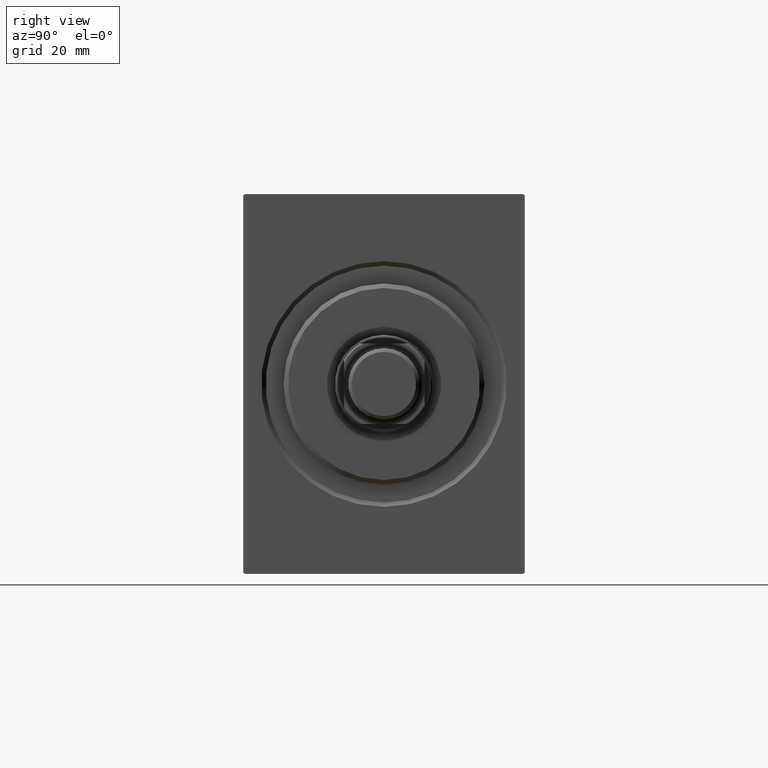
[diagram: clean part render]
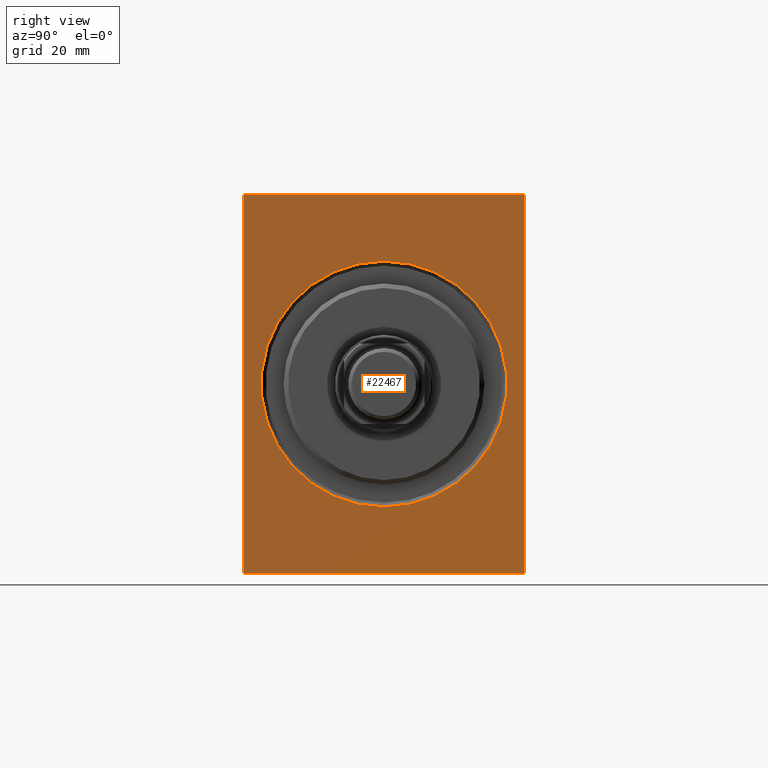
[diagram: same view with one face highlighted and labeled with its STEP entity id]
A machine part, right view. The second image highlights one B-rep face of the part: STEP entity #22467.
In plain terms, the highlighted planar face has unit normal (-1, 0, 0).
Its self-contained STEP definition (entity closure, byte-faithful):
#127 = VECTOR ( 'NONE', #25087, 1000.000000000000000 ) ;
#1148 = CARTESIAN_POINT ( 'NONE',  ( 0.000000000000000000, 31.20000000000001350, -42.50000000000000711 ) ) ;
#2117 = VECTOR ( 'NONE', #18849, 1000.000000000000114 ) ;
#2341 = CARTESIAN_POINT ( 'NONE',  ( 0.000000000000000000, 31.19999999999999218, 42.50000000000000000 ) ) ;
#2621 = ORIENTED_EDGE ( 'NONE', *, *, #20559, .T. ) ;
#2676 = ORIENTED_EDGE ( 'NONE', *, *, #2716, .T. ) ;
#2716 = EDGE_CURVE ( 'NONE', #5503, #7180, #28503, .T. ) ;
#2876 = CARTESIAN_POINT ( 'NONE',  ( 0.000000000000000000, 31.50000000000001421, -42.50000000000000711 ) ) ;
#2975 = LINE ( 'NONE', #32582, #2117 ) ;
#3845 = EDGE_CURVE ( 'NONE', #12893, #21361, #2975, .T. ) ;
#4168 = ORIENTED_EDGE ( 'NONE', *, *, #5617, .T. ) ;
#4272 = AXIS2_PLACEMENT_3D ( 'NONE', #32681, #29424, #16344 ) ;
#5503 = VERTEX_POINT ( 'NONE', #9715 ) ;
#5617 = EDGE_CURVE ( 'NONE', #7180, #5503, #5631, .T. ) ;
#5631 = CIRCLE ( 'NONE', #12567, 27.49999999999999645 ) ;
#5831 = FACE_OUTER_BOUND ( 'NONE', #38801, .T. ) ;
#6647 = CARTESIAN_POINT ( 'NONE',  ( 0.000000000000000000, 31.50000000000001421, -42.20000000000000284 ) ) ;
#7069 = VERTEX_POINT ( 'NONE', #2341 ) ;
#7180 = VERTEX_POINT ( 'NONE', #42821 ) ;
#7744 = CARTESIAN_POINT ( 'NONE',  ( 0.000000000000000000, 31.50000000000001421, -42.20000000000000284 ) ) ;
#7966 = DIRECTION ( 'NONE',  ( 0.000000000000000000, -0.7071067811865393571, -0.7071067811865556774 ) ) ;
#8253 = CARTESIAN_POINT ( 'NONE',  ( 0.000000000000000000, -31.19999999999998508, -42.50000000000000711 ) ) ;
#8283 = ORIENTED_EDGE ( 'NONE', *, *, #3845, .T. ) ;
#8728 = DIRECTION ( 'NONE',  ( 0.000000000000000000, -1.000000000000000000, -2.202823461557850341E-16 ) ) ;
#9715 = CARTESIAN_POINT ( 'NONE',  ( 0.000000000000000000, 0.000000000000000000, 27.49999999999999645 ) ) ;
#10314 = VECTOR ( 'NONE', #7966, 1000.000000000000000 ) ;
#10715 = ORIENTED_EDGE ( 'NONE', *, *, #24004, .F. ) ;
#11091 = DIRECTION ( 'NONE',  ( 0.000000000000000000, 1.000000000000000000, 0.000000000000000000 ) ) ;
#11522 = LINE ( 'NONE', #24164, #28982 ) ;
#11620 = DIRECTION ( 'NONE',  ( -0.000000000000000000, -0.7071067811865556774, 0.7071067811865393571 ) ) ;
#11772 = ORIENTED_EDGE ( 'NONE', *, *, #20026, .F. ) ;
#11797 = LINE ( 'NONE', #12233, #127 ) ;
#12233 = CARTESIAN_POINT ( 'NONE',  ( 0.000000000000000000, 31.19999999999999218, 42.50000000000000000 ) ) ;
#12567 = AXIS2_PLACEMENT_3D ( 'NONE', #35310, #39000, #35958 ) ;
#12732 = VECTOR ( 'NONE', #8728, 1000.000000000000000 ) ;
#12893 = VERTEX_POINT ( 'NONE', #35114 ) ;
#14127 = VECTOR ( 'NONE', #11620, 1000.000000000000000 ) ;
#14332 = DIRECTION ( 'NONE',  ( 0.000000000000000000, 0.000000000000000000, -1.000000000000000000 ) ) ;
#14714 = VERTEX_POINT ( 'NONE', #8253 ) ;
#14800 = EDGE_CURVE ( 'NONE', #14714, #29525, #11522, .T. ) ;
#14893 = LINE ( 'NONE', #37320, #14127 ) ;
#15187 = VECTOR ( 'NONE', #39436, 1000.000000000000000 ) ;
#16344 = DIRECTION ( 'NONE',  ( 0.000000000000000000, 0.000000000000000000, -1.000000000000000000 ) ) ;
#18720 = EDGE_LOOP ( 'NONE', ( #2676, #4168 ) ) ;
#18849 = DIRECTION ( 'NONE',  ( -0.000000000000000000, 0.7071067811865393571, 0.7071067811865556774 ) ) ;
#19851 = LINE ( 'NONE', #2876, #15187 ) ;
#20026 = EDGE_CURVE ( 'NONE', #27610, #22072, #19851, .T. ) ;
#20559 = EDGE_CURVE ( 'NONE', #27610, #29525, #21659, .T. ) ;
#20786 = ORIENTED_EDGE ( 'NONE', *, *, #31190, .T. ) ;
#20857 = LINE ( 'NONE', #30893, #40296 ) ;
#21361 = VERTEX_POINT ( 'NONE', #40240 ) ;
#21659 = LINE ( 'NONE', #7744, #10314 ) ;
#22010 = LINE ( 'NONE', #42465, #12732 ) ;
#22072 = VERTEX_POINT ( 'NONE', #24629 ) ;
#22467 = ADVANCED_FACE ( 'NONE', ( #35663, #5831 ), #28474, .F. ) ;
#24004 = EDGE_CURVE ( 'NONE', #12893, #32558, #20857, .T. ) ;
#24164 = CARTESIAN_POINT ( 'NONE',  ( 0.000000000000000000, -31.49999999999999289, -42.50000000000000711 ) ) ;
#24629 = CARTESIAN_POINT ( 'NONE',  ( 0.000000000000000000, 31.50000000000000000, 42.20000000000001705 ) ) ;
#25055 = ORIENTED_EDGE ( 'NONE', *, *, #35955, .T. ) ;
#25087 = DIRECTION ( 'NONE',  ( -0.000000000000000000, 0.7071067811865721087, -0.7071067811865230368 ) ) ;
#27610 = VERTEX_POINT ( 'NONE', #6647 ) ;
#28061 = DIRECTION ( 'NONE',  ( 0.000000000000000000, 0.000000000000000000, -1.000000000000000000 ) ) ;
#28474 = PLANE ( 'NONE',  #41664 ) ;
#28503 = CIRCLE ( 'NONE', #4272, 27.49999999999999645 ) ;
#28982 = VECTOR ( 'NONE', #11091, 1000.000000000000000 ) ;
#29424 = DIRECTION ( 'NONE',  ( 1.000000000000000000, 0.000000000000000000, 0.000000000000000000 ) ) ;
#29525 = VERTEX_POINT ( 'NONE', #1148 ) ;
#30893 = CARTESIAN_POINT ( 'NONE',  ( 0.000000000000000000, -31.49999999999999289, 42.49999999999998579 ) ) ;
#31190 = EDGE_CURVE ( 'NONE', #7069, #22072, #11797, .T. ) ;
#31845 = ORIENTED_EDGE ( 'NONE', *, *, #14800, .F. ) ;
#32186 = CARTESIAN_POINT ( 'NONE',  ( 0.000000000000000000, 0.000000000000000000, 0.000000000000000000 ) ) ;
#32558 = VERTEX_POINT ( 'NONE', #40109 ) ;
#32582 = CARTESIAN_POINT ( 'NONE',  ( 0.000000000000000000, -31.49999999999999289, 42.19999999999996732 ) ) ;
#32681 = CARTESIAN_POINT ( 'NONE',  ( 0.000000000000000000, 0.000000000000000000, 0.000000000000000000 ) ) ;
#34524 = EDGE_CURVE ( 'NONE', #7069, #21361, #22010, .T. ) ;
#35114 = CARTESIAN_POINT ( 'NONE',  ( 0.000000000000000000, -31.49999999999999289, 42.19999999999996732 ) ) ;
#35310 = CARTESIAN_POINT ( 'NONE',  ( 0.000000000000000000, 0.000000000000000000, 0.000000000000000000 ) ) ;
#35452 = ORIENTED_EDGE ( 'NONE', *, *, #34524, .F. ) ;
#35663 = FACE_BOUND ( 'NONE', #18720, .T. ) ;
#35955 = EDGE_CURVE ( 'NONE', #14714, #32558, #14893, .T. ) ;
#35958 = DIRECTION ( 'NONE',  ( 0.000000000000000000, 0.000000000000000000, -1.000000000000000000 ) ) ;
#37320 = CARTESIAN_POINT ( 'NONE',  ( 0.000000000000000000, -31.19999999999998508, -42.50000000000000711 ) ) ;
#38495 = DIRECTION ( 'NONE',  ( 1.000000000000000000, 0.000000000000000000, 0.000000000000000000 ) ) ;
#38801 = EDGE_LOOP ( 'NONE', ( #35452, #20786, #11772, #2621, #31845, #25055, #10715, #8283 ) ) ;
#39000 = DIRECTION ( 'NONE',  ( 1.000000000000000000, 0.000000000000000000, 0.000000000000000000 ) ) ;
#39436 = DIRECTION ( 'NONE',  ( 0.000000000000000000, -1.632680918566406300E-16, 1.000000000000000000 ) ) ;
#40109 = CARTESIAN_POINT ( 'NONE',  ( 0.000000000000000000, -31.49999999999999289, -42.20000000000000995 ) ) ;
#40240 = CARTESIAN_POINT ( 'NONE',  ( 0.000000000000000000, -31.19999999999997797, 42.49999999999998579 ) ) ;
#40296 = VECTOR ( 'NONE', #14332, 1000.000000000000000 ) ;
#41664 = AXIS2_PLACEMENT_3D ( 'NONE', #32186, #38495, #28061 ) ;
#42465 = CARTESIAN_POINT ( 'NONE',  ( 0.000000000000000000, 31.50000000000000000, 42.50000000000000000 ) ) ;
#42821 = CARTESIAN_POINT ( 'NONE',  ( 0.000000000000000000, 3.367778697655221307E-15, -27.49999999999999645 ) ) ;